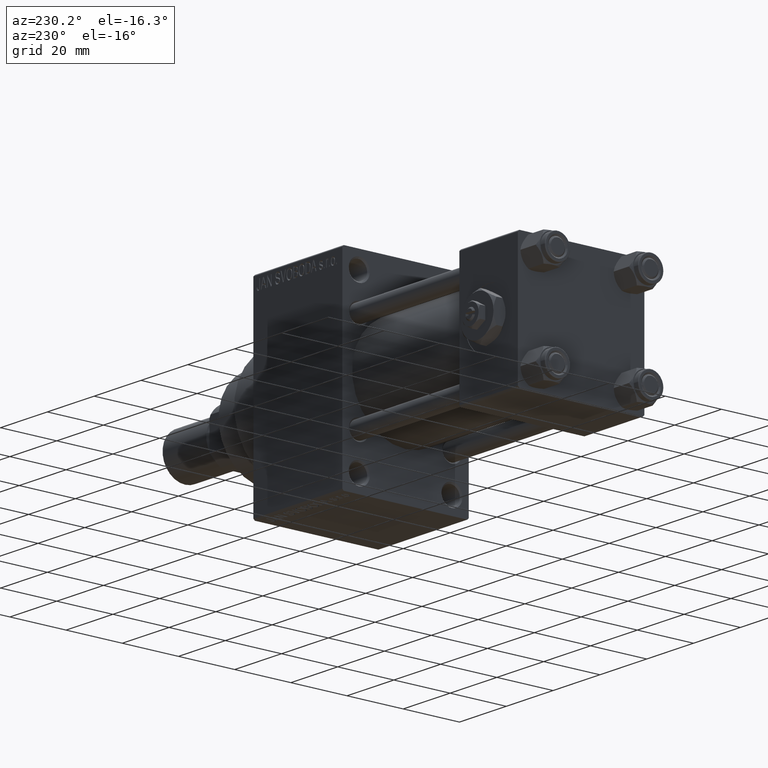
[diagram: clean part render]
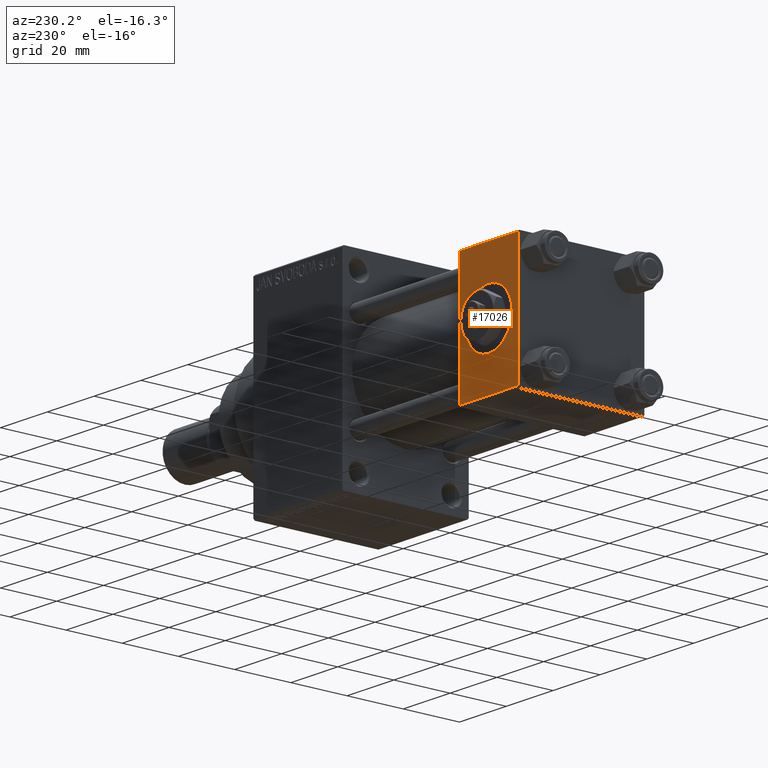
[diagram: same view with one face highlighted and labeled with its STEP entity id]
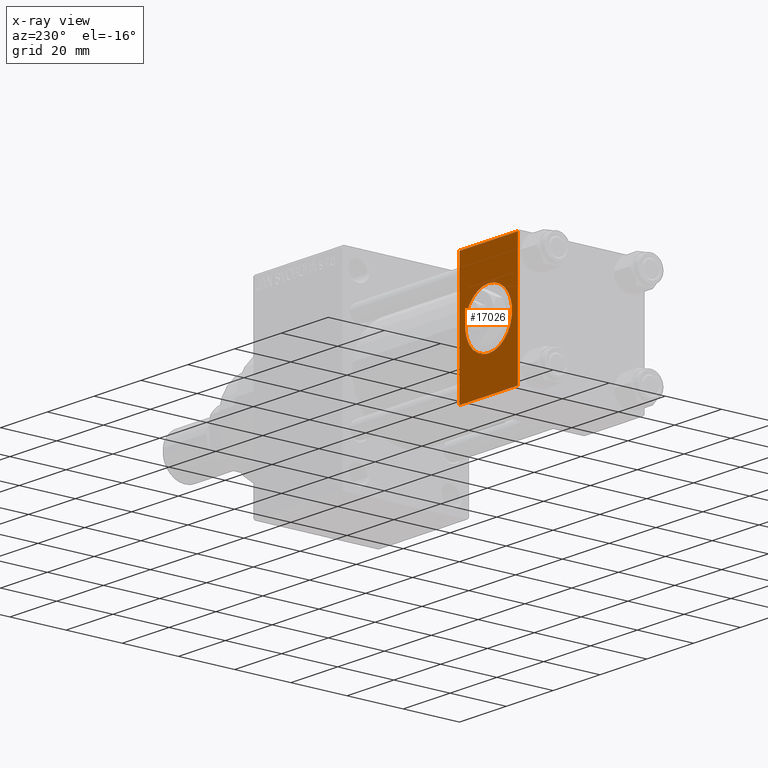
[diagram: x-ray of the same camera — body ghosted, the highlighted face saturated]
A machine part, auxiliary view. The second image highlights one B-rep face of the part: STEP entity #17026.
The next image is the same camera in x-ray: the body ghosted, the highlighted face saturated — about 0% of this face is hidden behind the body in this view.
In plain terms, the highlighted planar face has unit normal (0, 1, 0).
Its self-contained STEP definition (entity closure, byte-faithful):
#418 = DIRECTION ( 'NONE',  ( 1.000000000000000000, 0.000000000000000000, 0.000000000000000000 ) ) ;
#1298 = DIRECTION ( 'NONE',  ( -1.000000000000000000, 0.000000000000000000, 0.000000000000000000 ) ) ;
#1349 = AXIS2_PLACEMENT_3D ( 'NONE', #48912, #33547, #44948 ) ;
#1768 = LINE ( 'NONE', #31994, #22937 ) ;
#2925 = DIRECTION ( 'NONE',  ( -0.000000000000000000, 1.000000000000000000, 0.000000000000000000 ) ) ;
#3265 = CARTESIAN_POINT ( 'NONE',  ( 12.50000000000000000, 22.50000000000000000, 9.999999999999996447 ) ) ;
#3398 = FACE_BOUND ( 'NONE', #9904, .T. ) ;
#3884 = CARTESIAN_POINT ( 'NONE',  ( 25.00000000000000000, 22.50000000000000000, 22.50000000000000355 ) ) ;
#4141 = CARTESIAN_POINT ( 'NONE',  ( 25.00000000000000000, 22.50000000000000000, 21.99999999999999645 ) ) ;
#5460 = CARTESIAN_POINT ( 'NONE',  ( 25.00000000000000000, 22.50000000000000000, 21.99999999999999645 ) ) ;
#6069 = VERTEX_POINT ( 'NONE', #38184 ) ;
#9904 = EDGE_LOOP ( 'NONE', ( #33722, #24584 ) ) ;
#11592 = DIRECTION ( 'NONE',  ( 0.000000000000000000, 0.000000000000000000, 1.000000000000000000 ) ) ;
#12190 = EDGE_LOOP ( 'NONE', ( #43927, #17289, #44243, #22247 ) ) ;
#17026 = ADVANCED_FACE ( 'NONE', ( #3398, #48259 ), #18519, .T. ) ;
#17289 = ORIENTED_EDGE ( 'NONE', *, *, #40695, .T. ) ;
#17889 = CARTESIAN_POINT ( 'NONE',  ( 12.50000000000000178, 22.50000000000000000, -9.999999999999996447 ) ) ;
#18519 = PLANE ( 'NONE',  #21675 ) ;
#19275 = VERTEX_POINT ( 'NONE', #17889 ) ;
#20152 = VERTEX_POINT ( 'NONE', #5460 ) ;
#21139 = CIRCLE ( 'NONE', #1349, 9.999999999999996447 ) ;
#21675 = AXIS2_PLACEMENT_3D ( 'NONE', #3884, #2925, #45021 ) ;
#22247 = ORIENTED_EDGE ( 'NONE', *, *, #42536, .T. ) ;
#22612 = EDGE_CURVE ( 'NONE', #19275, #31014, #40095, .T. ) ;
#22937 = VECTOR ( 'NONE', #36432, 1000.000000000000000 ) ;
#23849 = LINE ( 'NONE', #48054, #27771 ) ;
#24584 = ORIENTED_EDGE ( 'NONE', *, *, #22612, .F. ) ;
#24723 = CARTESIAN_POINT ( 'NONE',  ( 25.00000000000000000, 22.50000000000000000, -21.99999999999996803 ) ) ;
#25217 = LINE ( 'NONE', #33624, #35639 ) ;
#25820 = AXIS2_PLACEMENT_3D ( 'NONE', #38101, #46522, #11592 ) ;
#27771 = VECTOR ( 'NONE', #1298, 1000.000000000000000 ) ;
#28299 = EDGE_CURVE ( 'NONE', #31014, #19275, #21139, .T. ) ;
#31014 = VERTEX_POINT ( 'NONE', #3265 ) ;
#31994 = CARTESIAN_POINT ( 'NONE',  ( 0.000000000000000000, 22.50000000000000000, 22.50000000000000355 ) ) ;
#32231 = CARTESIAN_POINT ( 'NONE',  ( 0.000000000000000000, 22.50000000000000000, 21.99999999999999645 ) ) ;
#32542 = VERTEX_POINT ( 'NONE', #24723 ) ;
#33547 = DIRECTION ( 'NONE',  ( 0.000000000000000000, 1.000000000000000000, 0.000000000000000000 ) ) ;
#33624 = CARTESIAN_POINT ( 'NONE',  ( 25.00000000000000000, 22.50000000000000000, 22.50000000000000355 ) ) ;
#33722 = ORIENTED_EDGE ( 'NONE', *, *, #28299, .F. ) ;
#35639 = VECTOR ( 'NONE', #41069, 1000.000000000000000 ) ;
#36432 = DIRECTION ( 'NONE',  ( 0.000000000000000000, 0.000000000000000000, -1.000000000000000000 ) ) ;
#37829 = LINE ( 'NONE', #4141, #41237 ) ;
#38101 = CARTESIAN_POINT ( 'NONE',  ( 12.50000000000000000, 22.50000000000000000, 0.000000000000000000 ) ) ;
#38184 = CARTESIAN_POINT ( 'NONE',  ( 0.000000000000000000, 22.50000000000000000, -21.99999999999996803 ) ) ;
#38700 = VERTEX_POINT ( 'NONE', #32231 ) ;
#38718 = EDGE_CURVE ( 'NONE', #38700, #6069, #1768, .T. ) ;
#40095 = CIRCLE ( 'NONE', #25820, 9.999999999999996447 ) ;
#40695 = EDGE_CURVE ( 'NONE', #32542, #6069, #23849, .T. ) ;
#41069 = DIRECTION ( 'NONE',  ( 0.000000000000000000, 0.000000000000000000, -1.000000000000000000 ) ) ;
#41237 = VECTOR ( 'NONE', #418, 1000.000000000000000 ) ;
#42536 = EDGE_CURVE ( 'NONE', #38700, #20152, #37829, .T. ) ;
#43927 = ORIENTED_EDGE ( 'NONE', *, *, #45329, .T. ) ;
#44243 = ORIENTED_EDGE ( 'NONE', *, *, #38718, .F. ) ;
#44948 = DIRECTION ( 'NONE',  ( 0.000000000000000000, 0.000000000000000000, 1.000000000000000000 ) ) ;
#45021 = DIRECTION ( 'NONE',  ( 0.000000000000000000, -0.000000000000000000, 1.000000000000000000 ) ) ;
#45329 = EDGE_CURVE ( 'NONE', #20152, #32542, #25217, .T. ) ;
#46522 = DIRECTION ( 'NONE',  ( 0.000000000000000000, 1.000000000000000000, 0.000000000000000000 ) ) ;
#48054 = CARTESIAN_POINT ( 'NONE',  ( 25.00000000000000000, 22.50000000000000000, -21.99999999999998224 ) ) ;
#48259 = FACE_OUTER_BOUND ( 'NONE', #12190, .T. ) ;
#48912 = CARTESIAN_POINT ( 'NONE',  ( 12.50000000000000000, 22.50000000000000000, 0.000000000000000000 ) ) ;